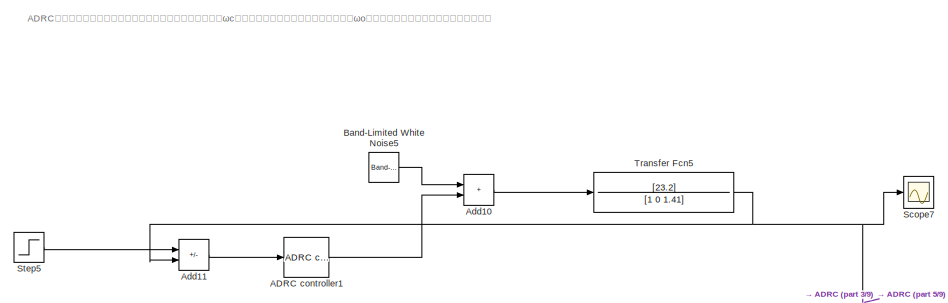
[diagram: root canvas - part 1/9, top left region]
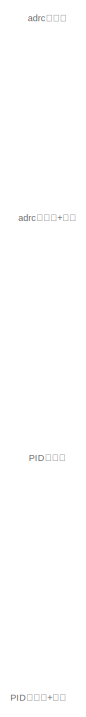
[diagram: root canvas - part 2/9, top left region]
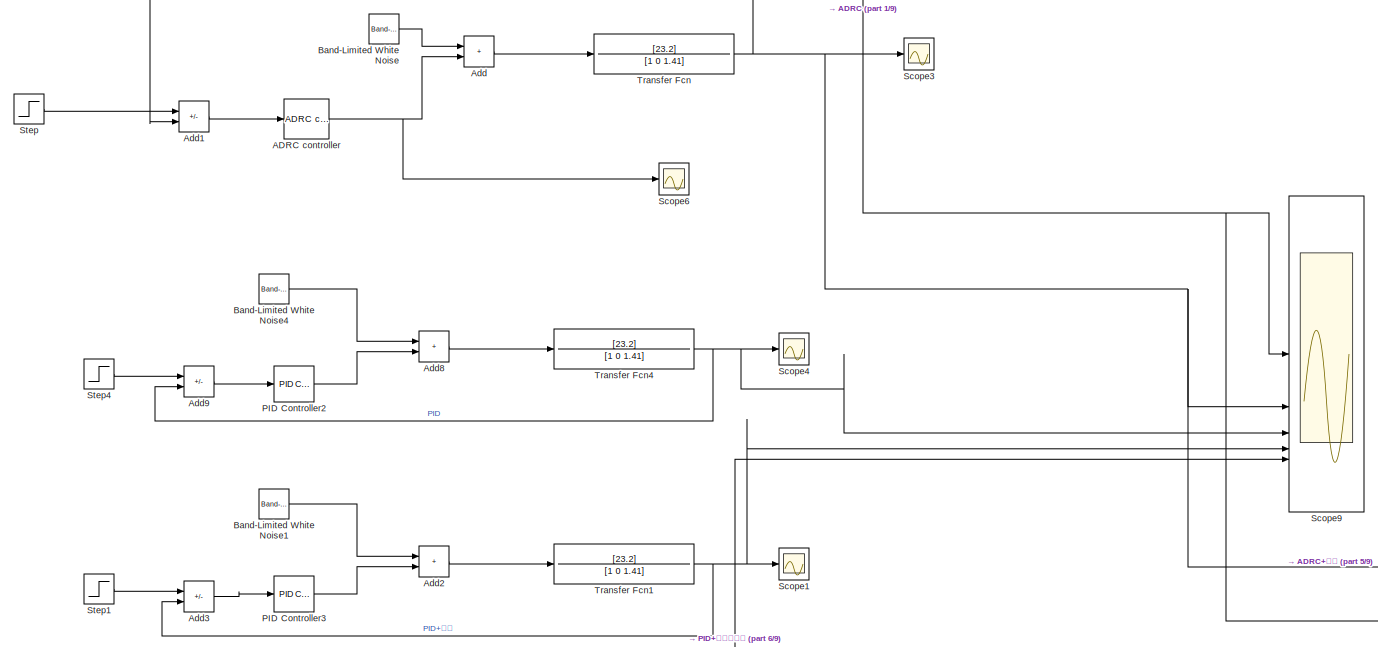
[diagram: root canvas - part 3/9, middle left region]
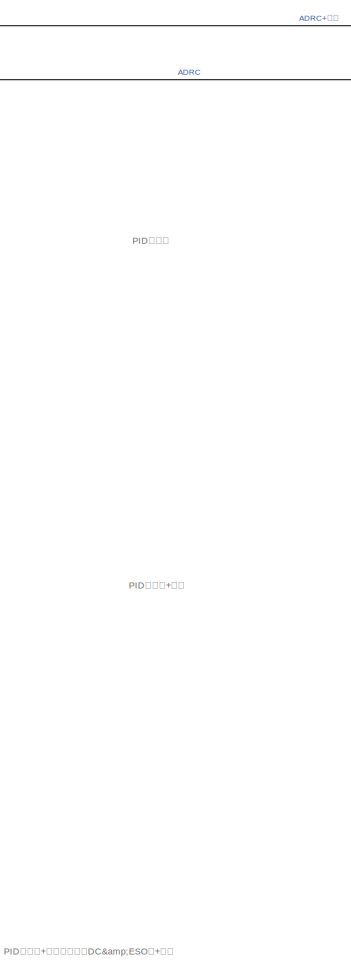
[diagram: root canvas - part 4/9, bottom center region]
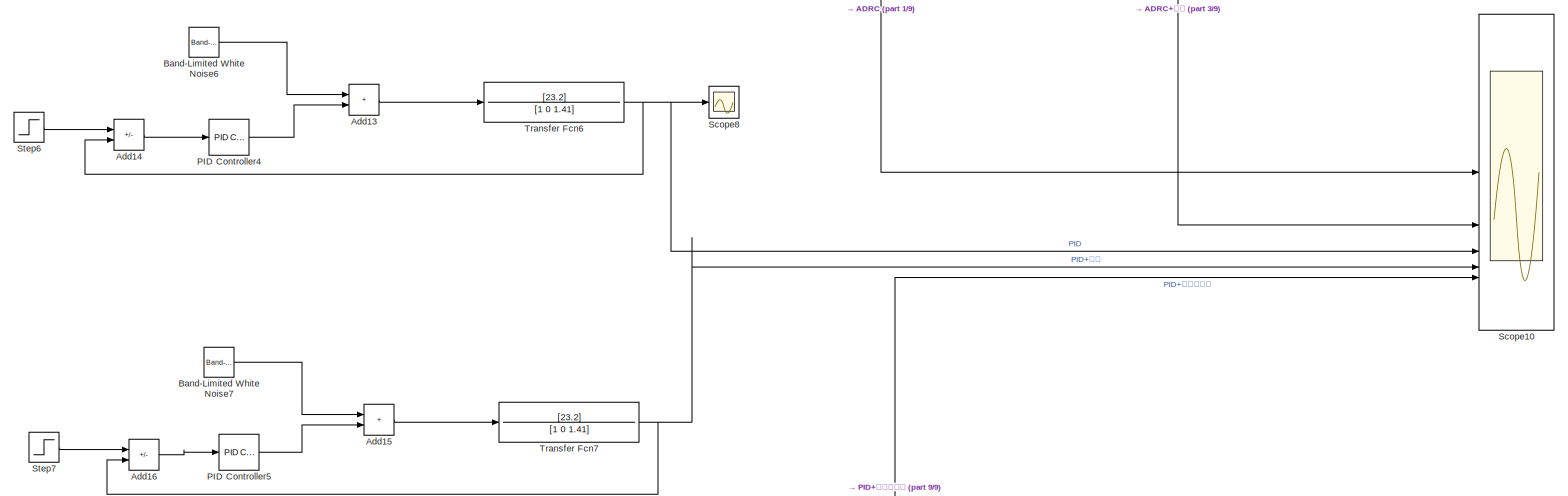
[diagram: root canvas - part 5/9, bottom right region]
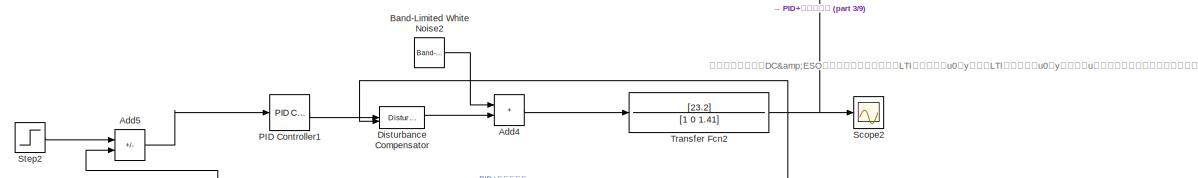
[diagram: root canvas - part 6/9, middle left region]
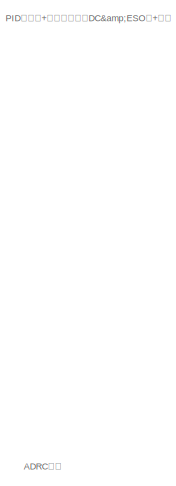
[diagram: root canvas - part 7/9, bottom left region]
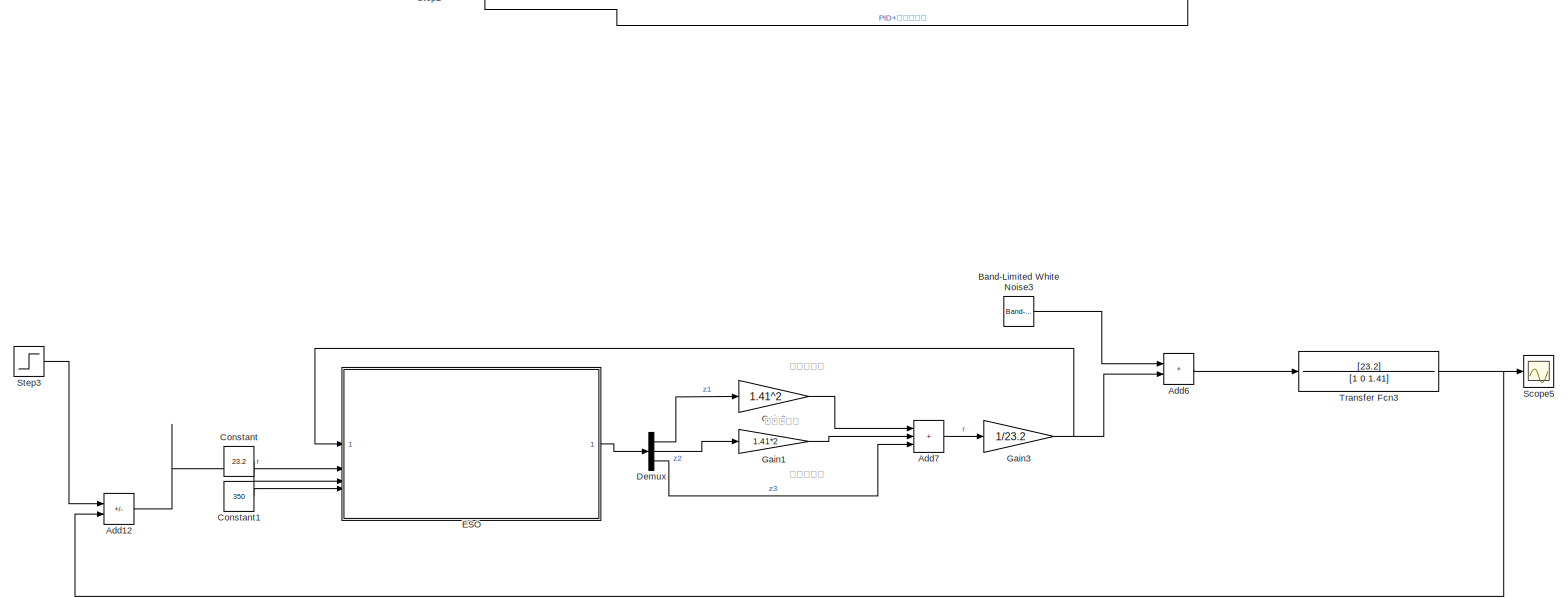
[diagram: root canvas - part 8/9, bottom left region]
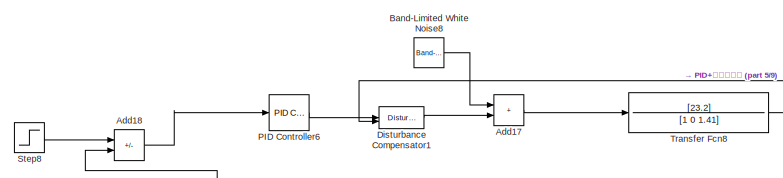
[diagram: root canvas - part 9/9, bottom right region]
MODEL slx_7e202ef343a3
KIND model
CONFIG AbsTol = auto
CONFIG EnableMultiTasking = off
CONFIG FixedStep = auto
CONFIG MaxStep = auto
CONFIG MinStep = auto
CONFIG RelTol = 1e-3
CONFIG SampleTimeConstraint = Unconstrained
CONFIG SolverName = VariableStepAuto
CONFIG StartTime = 0.0
CONFIG StopTime = 100
BLOCK [Reference] ADRC controller  REF=adrc_toolbox_library/ADRC controller
  SourceBlock = adrc_toolbox_library/ADRC controller
  SourceProductName = ADRC Toolbox
  SourceType = ADRC controller
BLOCK [Reference] ADRC controller1  REF=adrc_toolbox_library/ADRC controller
  SourceBlock = adrc_toolbox_library/ADRC controller
  SourceProductName = ADRC Toolbox
  SourceType = ADRC controller
BLOCK [Sum] Add
  IconShape = rectangular
BLOCK [Sum] Add1
  IconShape = rectangular
  Inputs = +-
BLOCK [Sum] Add10
  IconShape = rectangular
BLOCK [Sum] Add11
  IconShape = rectangular
  Inputs = +-
BLOCK [Sum] Add12
  IconShape = rectangular
  Inputs = +-
BLOCK [Sum] Add13
  IconShape = rectangular
BLOCK [Sum] Add14
  IconShape = rectangular
  Inputs = +-
BLOCK [Sum] Add15
  IconShape = rectangular
BLOCK [Sum] Add16
  IconShape = rectangular
  Inputs = +-
BLOCK [Sum] Add17
  IconShape = rectangular
BLOCK [Sum] Add18
  IconShape = rectangular
  Inputs = +-
BLOCK [Sum] Add2
  IconShape = rectangular
BLOCK [Sum] Add3
  IconShape = rectangular
  Inputs = +-
BLOCK [Sum] Add4
  IconShape = rectangular
BLOCK [Sum] Add5
  IconShape = rectangular
  Inputs = +-
BLOCK [Sum] Add6
  IconShape = rectangular
BLOCK [Sum] Add7
  IconShape = rectangular
  Inputs = +++
BLOCK [Sum] Add8
  IconShape = rectangular
BLOCK [Sum] Add9
  IconShape = rectangular
  Inputs = +-
BLOCK [Reference] Band-Limited White Noise  REF=simulink/Sources/Band-Limited
White Noise
  SourceBlock = simulink/Sources/Band-Limited\nWhite Noise
  SourceType = Band-Limited White Noise.
BLOCK [Reference] Band-Limited White Noise1  REF=simulink/Sources/Band-Limited
White Noise
  SourceBlock = simulink/Sources/Band-Limited\nWhite Noise
  SourceType = Band-Limited White Noise.
BLOCK [Reference] Band-Limited White Noise2  REF=simulink/Sources/Band-Limited
White Noise
  SourceBlock = simulink/Sources/Band-Limited\nWhite Noise
  SourceType = Band-Limited White Noise.
BLOCK [Reference] Band-Limited White Noise3  REF=simulink/Sources/Band-Limited
White Noise
  SourceBlock = simulink/Sources/Band-Limited\nWhite Noise
  SourceType = Band-Limited White Noise.
BLOCK [Reference] Band-Limited White Noise4  REF=simulink/Sources/Band-Limited
White Noise
  SourceBlock = simulink/Sources/Band-Limited\nWhite Noise
  SourceType = Band-Limited White Noise.
BLOCK [Reference] Band-Limited White Noise5  REF=simulink/Sources/Band-Limited
White Noise
  SourceBlock = simulink/Sources/Band-Limited\nWhite Noise
  SourceType = Band-Limited White Noise.
BLOCK [Reference] Band-Limited White Noise6  REF=simulink/Sources/Band-Limited
White Noise
  SourceBlock = simulink/Sources/Band-Limited\nWhite Noise
  SourceType = Band-Limited White Noise.
BLOCK [Reference] Band-Limited White Noise7  REF=simulink/Sources/Band-Limited
White Noise
  SourceBlock = simulink/Sources/Band-Limited\nWhite Noise
  SourceType = Band-Limited White Noise.
BLOCK [Reference] Band-Limited White Noise8  REF=simulink/Sources/Band-Limited
White Noise
  SourceBlock = simulink/Sources/Band-Limited\nWhite Noise
  SourceType = Band-Limited White Noise.
BLOCK [Constant] Constant
  Value = 23.2
BLOCK [Constant] Constant1
  Value = 350
BLOCK [Demux] Demux
  Outputs = 3
BLOCK [Reference] Disturbance Compensator  REF=slctrl_disturbance/Disturbance Compensator
  LibrarySourceBlock = slctrlblks/Disturbance Observer/Disturbance Compensator
  SourceBlock = slctrl_disturbance/Disturbance Compensator
  SourceType = Disturbance Compensator
BLOCK [Reference] Disturbance Compensator1  REF=slctrl_disturbance/Disturbance Compensator
  LibrarySourceBlock = slctrlblks/Disturbance Observer/Disturbance Compensator
  SourceBlock = slctrl_disturbance/Disturbance Compensator
  SourceType = Disturbance Compensator
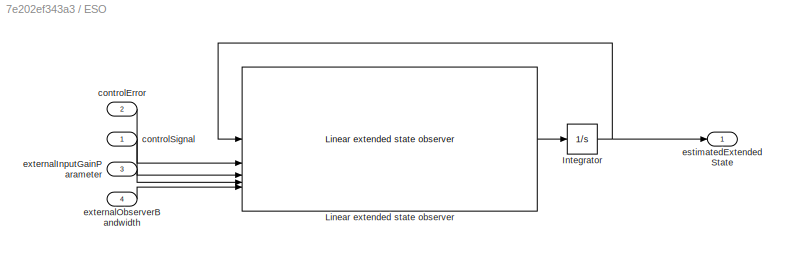
BLOCK [SubSystem] ESO
BLOCK [Integrator] ESO/Integrator
  InitialCondition = zeros(3,1)
BLOCK [Reference] ESO/Linear extended state observer  REF=adrc_toolbox_library/ADRC controller/Linear extended state observer/Linear extended state observer
  SourceBlock = adrc_toolbox_library/ADRC controller/Linear extended state observer/Linear extended state observer
  SourceProductName = ADRC Toolbox
BLOCK [Inport] ESO/controlError
  Port = 2
BLOCK [Inport] ESO/controlSignal
BLOCK [Outport] ESO/estimatedExtendedState
  NameLocation = right
BLOCK [Inport] ESO/externalInputGainParameter
  Port = 3
BLOCK [Inport] ESO/externalObserverBandwidth
  Port = 4
BLOCK [Gain] Gain1
  Gain = 1.41*2
BLOCK [Gain] Gain2
  Gain = 1.41^2
BLOCK [Gain] Gain3
  Gain = 1/23.2
BLOCK [Reference] PID Controller1  REF=slpidlib/PID Controller
  LibrarySourceBlock = simulink/Continuous/PID Controller
  SourceBlock = slpidlib/PID Controller
  SourceType = PID 1dof
BLOCK [Reference] PID Controller2  REF=slpidlib/PID Controller
  LibrarySourceBlock = simulink/Continuous/PID Controller
  SourceBlock = slpidlib/PID Controller
  SourceType = PID 1dof
BLOCK [Reference] PID Controller3  REF=slpidlib/PID Controller
  LibrarySourceBlock = simulink/Continuous/PID Controller
  SourceBlock = slpidlib/PID Controller
  SourceType = PID 1dof
BLOCK [Reference] PID Controller4  REF=slpidlib/PID Controller
  LibrarySourceBlock = simulink/Continuous/PID Controller
  SourceBlock = slpidlib/PID Controller
  SourceType = PID 1dof
BLOCK [Reference] PID Controller5  REF=slpidlib/PID Controller
  LibrarySourceBlock = simulink/Continuous/PID Controller
  SourceBlock = slpidlib/PID Controller
  SourceType = PID 1dof
BLOCK [Reference] PID Controller6  REF=slpidlib/PID Controller
  LibrarySourceBlock = simulink/Continuous/PID Controller
  SourceBlock = slpidlib/PID Controller
  SourceType = PID 1dof
BLOCK [Scope] Scope1
  ActiveDisplayYMaximum = 2
  ActiveDisplayYMinimum = -1
  DataLoggingVariableName = ScopeData1
  Floating = off
  GraphicalSettings = {"Style":{"BackgroundColor":[0.12941176470588237,0.12941176470588237,0.12941176470588237],"AxesColor":[0.07058823529411765,0.07058823529411765,0.07058823529411765],"LabelsColor":[0.8509803921568627,0.8509803921568627,0.8509803921568627],"PreserveColors":false,"Visible":[true],"LineStyle":["-"],"LineWidth":[1.5],"BarWidth":[0.9],"LineColor":["auto"],"LineFaceAlpha":[1],"LineEdgeAlpha":[1],"Marker":...<+1930ch>
  MultipleDisplayCache = [{"MaxYLimMag":3.7622519846701663,"MaxYLimReal":2,"MinYLimMag":0,"MinYLimReal":-1,"PlotAsMagnitudePhase":false,"ShowGrid":true,"ShowLegend":false,"Title":"%<SignalLabel>","YLabel":""}]
  NumInputPorts = 1
  ScopeFrameLocation = window
  WasSavedAsWebScope = on
  WindowPosition = [930.000000,333.000000,560.000000,420.000000,]
BLOCK [Scope] Scope10
  ActiveDisplayYMaximum = 1.4
  ActiveDisplayYMinimum = 0
  DataLoggingVariableName = ScopeData9
  Floating = off
  GraphicalSettings = {"Style":{"BackgroundColor":[0.12941176470588237,0.12941176470588237,0.12941176470588237],"AxesColor":[0.07058823529411765,0.07058823529411765,0.07058823529411765],"LabelsColor":[0.8509803921568627,0.8509803921568627,0.8509803921568627],"PreserveColors":false,"Visible":[true,true,true,true,true],"LineStyle":["-","-","-","-","-"],"LineWidth":[1.5,1.5,1.5,1.5,1.5],"BarWidth":[0.9,0.9,0.9,0.9,0.9],"L...<+2369ch>
  MultipleDisplayCache = [{"MaxYLimMag":3.7622519846701663,"MaxYLimReal":1.4,"MinYLimMag":0,"MinYLimReal":0,"PlotAsMagnitudePhase":false,"ShowGrid":true,"ShowLegend":true,"Title":"PID和ADRC对比","YLabel":""}]
  NumInputPorts = 5
  ScopeFrameLocation = window
  ShowLegend = on
  Title = PID和ADRC对比
  WasSavedAsWebScope = on
  WindowPosition = [518.000000,207.000000,1160.000000,711.000000,]
BLOCK [Scope] Scope2
  ActiveDisplayYMaximum = 0.99900672878559849
  ActiveDisplayYMinimum = 0.9096813253515863
  DataLoggingVariableName = ScopeData2
  Floating = off
  GraphicalSettings = {"AxesScalingProperties":{"AlignXAxis":"Center","AlignYAxis":"Center","AutoScaleXAxisLimits":false,"AxesScaling":"Manual","AxesScalingNumUpdates":10,"ExpandOnly":true,"ScaleAxesLimitsAtStop":false,"XAxisDataRange":100,"YAxisDataRange":80},"DisplayProperties":{"ColorOrder":["auto","auto","auto","auto","auto","auto","auto","auto","auto","auto","auto","auto","auto","auto","auto","auto","auto","auto",...<+2007ch>
  MultipleDisplayCache = [{"MaxYLimMag":3.7622519846701663,"MaxYLimReal":0.99900672878559849,"MinYLimMag":0,"MinYLimReal":0.9096813253515863,"PlotAsMagnitudePhase":false,"ShowGrid":true,"ShowLegend":false,"Title":"%<SignalLabel>","YLabel":""}]
  NumInputPorts = 1
  ScopeFrameLocation = window
  WasSavedAsWebScope = on
  WindowPosition = [745.000000,186.000000,560.000000,420.000000,]
BLOCK [Scope] Scope3
  ActiveDisplayYMaximum = 1.05
  ActiveDisplayYMinimum = 0
  Floating = off
  GraphicalSettings = {"AxesScalingProperties":{"AlignXAxis":"Center","AlignYAxis":"Center","AutoScaleXAxisLimits":false,"AxesScaling":"Manual","AxesScalingNumUpdates":10,"ExpandOnly":true,"ScaleAxesLimitsAtStop":false,"XAxisDataRange":100,"YAxisDataRange":80},"DisplayProperties":{"ColorOrder":["auto","auto","auto","auto","auto","auto","auto","auto","auto","auto","auto","auto","auto","auto","auto","auto","auto","auto",...<+2018ch>
  MultipleDisplayCache = [{"MaxYLimMag":3.7622519846701663,"MaxYLimReal":1.05,"MinYLimMag":0,"MinYLimReal":0,"PlotAsMagnitudePhase":false,"ShowGrid":true,"ShowLegend":false,"Title":"%<SignalLabel>","YLabel":""}]
  NumInputPorts = 1
  ScopeFrameLocation = window
  WasSavedAsWebScope = on
  WindowPosition = [721.000000,182.000000,559.000000,418.000000,]
BLOCK [Scope] Scope4
  ActiveDisplayYMaximum = 1.0978606838825373
  ActiveDisplayYMinimum = 0.81732514764202113
  DataLoggingVariableName = ScopeData4
  Floating = off
  GraphicalSettings = {"AxesScalingProperties":{"AlignXAxis":"Center","AlignYAxis":"Center","AutoScaleXAxisLimits":false,"AxesScaling":"Manual","AxesScalingNumUpdates":10,"ExpandOnly":true,"ScaleAxesLimitsAtStop":false,"XAxisDataRange":100,"YAxisDataRange":80},"DisplayProperties":{"ColorOrder":["auto","auto","auto","auto","auto","auto","auto","auto","auto","auto","auto","auto","auto","auto","auto","auto","auto","auto",...<+2003ch>
  MultipleDisplayCache = [{"MaxYLimMag":66.041381836301724,"MaxYLimReal":1.0978606838825373,"MinYLimMag":0,"MinYLimReal":0.81732514764202113,"PlotAsMagnitudePhase":false,"ShowGrid":true,"ShowLegend":false,"Title":"%<SignalLabel>","YLabel":""}]
  NumInputPorts = 1
  ScopeFrameLocation = window
  WasSavedAsWebScope = on
  WindowPosition = [763.000000,367.000000,560.000000,420.000000,]
BLOCK [Scope] Scope5
  ActiveDisplayYMaximum = 2.7529812650233358
  ActiveDisplayYMinimum = -1.4042011831290171
  DataLoggingVariableName = ScopeData3
  Floating = off
  GraphicalSettings = {"Style":{"BackgroundColor":[0.12941176470588237,0.12941176470588237,0.12941176470588237],"AxesColor":[0.07058823529411765,0.07058823529411765,0.07058823529411765],"LabelsColor":[0.8509803921568627,0.8509803921568627,0.8509803921568627],"PreserveColors":false,"Visible":[true],"LineStyle":["-"],"LineWidth":[1.5],"BarWidth":[0.9],"LineColor":["auto"],"LineFaceAlpha":[1],"LineEdgeAlpha":[1],"Marker":...<+1994ch>
  MultipleDisplayCache = [{"MaxYLimMag":3.7622519846701663,"MaxYLimReal":2.7529812650233358,"MinYLimMag":0,"MinYLimReal":-1.4042011831290171,"PlotAsMagnitudePhase":false,"ShowGrid":true,"ShowLegend":false,"Title":"%<SignalLabel>","YLabel":""}]
  NumInputPorts = 1
  ScopeFrameLocation = window
  WasSavedAsWebScope = on
  WindowPosition = [930.000000,333.000000,560.000000,420.000000,]
BLOCK [Scope] Scope6
  ActiveDisplayYMaximum = 0.33997949558563656
  ActiveDisplayYMinimum = -0.16122486126909497
  DataLoggingVariableName = ScopeData5
  Floating = off
  GraphicalSettings = {"Style":{"BackgroundColor":[0.12941176470588237,0.12941176470588237,0.12941176470588237],"AxesColor":[0.07058823529411765,0.07058823529411765,0.07058823529411765],"LabelsColor":[0.8509803921568627,0.8509803921568627,0.8509803921568627],"PreserveColors":false,"Visible":[true],"LineStyle":["-"],"LineWidth":[1.5],"BarWidth":[0.9],"LineColor":["auto"],"LineFaceAlpha":[1],"LineEdgeAlpha":[1],"Marker":...<+2004ch>
  MultipleDisplayCache = [{"MaxYLimMag":3.7622519846701663,"MaxYLimReal":0.33997949558563656,"MinYLimMag":0,"MinYLimReal":-0.16122486126909497,"PlotAsMagnitudePhase":false,"ShowGrid":true,"ShowLegend":false,"Title":"%<SignalLabel>","YLabel":""}]
  NumInputPorts = 1
  ScopeFrameLocation = window
  WasSavedAsWebScope = on
  WindowPosition = [228.000000,369.000000,560.000000,420.000000,]
BLOCK [Scope] Scope7
  ActiveDisplayYMaximum = 1.05
  ActiveDisplayYMinimum = 0
  DataLoggingVariableName = ScopeData6
  Floating = off
  GraphicalSettings = {"AxesScalingProperties":{"AlignXAxis":"Center","AlignYAxis":"Center","AutoScaleXAxisLimits":false,"AxesScaling":"Manual","AxesScalingNumUpdates":10,"ExpandOnly":true,"ScaleAxesLimitsAtStop":false,"XAxisDataRange":100,"YAxisDataRange":80},"DisplayProperties":{"ColorOrder":["auto","auto","auto","auto","auto","auto","auto","auto","auto","auto","auto","auto","auto","auto","auto","auto","auto","auto",...<+2016ch>
  MultipleDisplayCache = [{"MaxYLimMag":3.7622519846701663,"MaxYLimReal":1.05,"MinYLimMag":0,"MinYLimReal":0,"PlotAsMagnitudePhase":false,"ShowGrid":true,"ShowLegend":false,"Title":"%<SignalLabel>","YLabel":""}]
  NumInputPorts = 1
  ScopeFrameLocation = window
  WasSavedAsWebScope = on
  WindowPosition = [721.000000,182.000000,559.000000,418.000000,]
BLOCK [Scope] Scope8
  ActiveDisplayYMaximum = 1.0978606838825373
  ActiveDisplayYMinimum = 0.81732514764202113
  DataLoggingVariableName = ScopeData7
  Floating = off
  GraphicalSettings = {"AxesScalingProperties":{"AlignXAxis":"Center","AlignYAxis":"Center","AutoScaleXAxisLimits":false,"AxesScaling":"Manual","AxesScalingNumUpdates":10,"ExpandOnly":true,"ScaleAxesLimitsAtStop":false,"XAxisDataRange":100,"YAxisDataRange":80},"DisplayProperties":{"ColorOrder":["auto","auto","auto","auto","auto","auto","auto","auto","auto","auto","auto","auto","auto","auto","auto","auto","auto","auto",...<+2003ch>
  MultipleDisplayCache = [{"MaxYLimMag":66.041381836301724,"MaxYLimReal":1.0978606838825373,"MinYLimMag":0,"MinYLimReal":0.81732514764202113,"PlotAsMagnitudePhase":false,"ShowGrid":true,"ShowLegend":false,"Title":"%<SignalLabel>","YLabel":""}]
  NumInputPorts = 1
  ScopeFrameLocation = window
  WasSavedAsWebScope = on
  WindowPosition = [763.000000,367.000000,560.000000,420.000000,]
BLOCK [Scope] Scope9
  ActiveDisplayYMaximum = 1.05
  ActiveDisplayYMinimum = 0
  DataLoggingVariableName = ScopeData8
  Floating = off
  GraphicalSettings = {"Style":{"BackgroundColor":[0.12941176470588237,0.12941176470588237,0.12941176470588237],"AxesColor":[0.07058823529411765,0.07058823529411765,0.07058823529411765],"LabelsColor":[0.8509803921568627,0.8509803921568627,0.8509803921568627],"PreserveColors":false,"Visible":[true,true,true,true,true],"LineStyle":["-","-","-","-","-"],"LineWidth":[1.5,1.5,1.5,1.5,1.5],"BarWidth":[0.9,0.9,0.9,0.9,0.9],"L...<+2389ch>
  MultipleDisplayCache = [{"MaxYLimMag":3.7622519846701663,"MaxYLimReal":1.05,"MinYLimMag":0,"MinYLimReal":0,"PlotAsMagnitudePhase":false,"ShowGrid":true,"ShowLegend":true,"Title":"PID和ADRC对比（同样的PD参数）","YLabel":""}]
  NumInputPorts = 5
  ScopeFrameLocation = window
  ShowLegend = on
  Title = PID和ADRC对比（同样的PD参数）
  WasSavedAsWebScope = on
  WindowPosition = [518.000000,207.000000,1160.000000,711.000000,]
BLOCK [Step] Step
  SampleTime = 0
  Time = 2
BLOCK [Step] Step1
  SampleTime = 0
  Time = 2
BLOCK [Step] Step2
  SampleTime = 0
  Time = 2
BLOCK [Step] Step3
  SampleTime = 0
  Time = 2
BLOCK [Step] Step4
  SampleTime = 0
  Time = 2
BLOCK [Step] Step5
  SampleTime = 0
  Time = 2
BLOCK [Step] Step6
  SampleTime = 0
  Time = 2
BLOCK [Step] Step7
  SampleTime = 0
  Time = 2
BLOCK [Step] Step8
  SampleTime = 0
  Time = 2
BLOCK [TransferFcn] Transfer Fcn
  Denominator = [1 0 1.41]
  Numerator = [23.2]
BLOCK [TransferFcn] Transfer Fcn1
  Denominator = [1 0 1.41]
  Numerator = [23.2]
BLOCK [TransferFcn] Transfer Fcn2
  Denominator = [1 0 1.41]
  Numerator = [23.2]
BLOCK [TransferFcn] Transfer Fcn3
  Denominator = [1 0 1.41]
  Numerator = [23.2]
BLOCK [TransferFcn] Transfer Fcn4
  Denominator = [1 0 1.41]
  Numerator = [23.2]
BLOCK [TransferFcn] Transfer Fcn5
  Denominator = [1 0 1.41]
  Numerator = [23.2]
BLOCK [TransferFcn] Transfer Fcn6
  Denominator = [1 0 1.41]
  Numerator = [23.2]
BLOCK [TransferFcn] Transfer Fcn7
  Denominator = [1 0 1.41]
  Numerator = [23.2]
BLOCK [TransferFcn] Transfer Fcn8
  Denominator = [1 0 1.41]
  Numerator = [23.2]
ANNOTATION (root): ADRC拆解
ANNOTATION (root): PID控制器+噪声
ANNOTATION (root): PID控制器+扰动补偿器（DC&ESO）+噪声
ANNOTATION (root): PID控制器
ANNOTATION (root): adrc控制器+噪声
ANNOTATION (root): adrc控制器
ANNOTATION (root): 注：扰动补偿器（DC&ESO）仅仅是基于系统本身的LTI模型，根据u0、y和系统LTI模型，通过u0、y，计算出u的修正量，消除系统外部扰动。它不消除系统内扰，因此效果和ADRC不同，同样采用PD控制时，采用DC&ESO仍然有稳态偏差。
ANNOTATION (root): ADRC调参时，增益项就是传递函数系统的增益，控制器带宽ωc越大，控制器动作越频繁，观测器带宽ωo越大，大于扰动带宽，基本可消除扰动。
ANNOTATION (root): 微分控制项
ANNOTATION (root): 扰动观测值
ANNOTATION (root): 比例控制项
LINE ADRC controller1:1 -> Add10:2
NET ADRC controller:1 -> Add:2, Scope6:1
LINE Add10:1 -> Transfer Fcn5:1
LINE Add11:1 -> ADRC controller1:1
LINE Add12:1 -> ESO:2
LINE Add13:1 -> Transfer Fcn6:1
LINE Add14:1 -> PID Controller4:1
LINE Add15:1 -> Transfer Fcn7:1
LINE Add16:1 -> PID Controller5:1
LINE Add17:1 -> Transfer Fcn8:1
LINE Add18:1 -> PID Controller6:1
LINE Add1:1 -> ADRC controller:1
LINE Add2:1 -> Transfer Fcn1:1
LINE Add3:1 -> PID Controller3:1
LINE Add4:1 -> Transfer Fcn2:1
LINE Add5:1 -> PID Controller1:1
LINE Add6:1 -> Transfer Fcn3:1
LINE Add7:1 -> Gain3:1
LINE Add8:1 -> Transfer Fcn4:1
LINE Add9:1 -> PID Controller2:1
LINE Add:1 -> Transfer Fcn:1
LINE Band-Limited White Noise1:1 -> Add2:1
LINE Band-Limited White Noise2:1 -> Add4:1
LINE Band-Limited White Noise3:1 -> Add6:1
LINE Band-Limited White Noise4:1 -> Add8:1
LINE Band-Limited White Noise5:1 -> Add10:1
LINE Band-Limited White Noise6:1 -> Add13:1
LINE Band-Limited White Noise7:1 -> Add15:1
LINE Band-Limited White Noise8:1 -> Add17:1
LINE Band-Limited White Noise:1 -> Add:1
LINE Constant1:1 -> ESO:4
LINE Constant:1 -> ESO:3
LINE Demux:1 -> Gain2:1
LINE Demux:2 -> Gain1:1
LINE Demux:3 -> Add7:3
LINE Disturbance Compensator1:1 -> Add17:2
LINE Disturbance Compensator:1 -> Add4:2
NET ESO/Integrator:1 -> ESO/Linear extended state observer:1, ESO/estimatedExtendedState:1
LINE ESO/Linear extended state observer:1 -> ESO/Integrator:1
LINE ESO/controlError:1 -> ESO/Linear extended state observer:2
LINE ESO/controlSignal:1 -> ESO/Linear extended state observer:3
LINE ESO/externalInputGainParameter:1 -> ESO/Linear extended state observer:4
LINE ESO/externalObserverBandwidth:1 -> ESO/Linear extended state observer:5
LINE ESO:1 -> Demux:1
LINE Gain1:1 -> Add7:2
LINE Gain2:1 -> Add7:1
NET Gain3:1 -> Add6:2, ESO:1
LINE PID Controller1:1 -> Disturbance Compensator:1
LINE PID Controller2:1 -> Add8:2
LINE PID Controller3:1 -> Add2:2
LINE PID Controller4:1 -> Add13:2
LINE PID Controller5:1 -> Add15:2
LINE PID Controller6:1 -> Disturbance Compensator1:1
LINE Step1:1 -> Add3:1
LINE Step2:1 -> Add5:1
LINE Step3:1 -> Add12:1
LINE Step4:1 -> Add9:1
LINE Step5:1 -> Add11:1
LINE Step6:1 -> Add14:1
LINE Step7:1 -> Add16:1
LINE Step8:1 -> Add18:1
LINE Step:1 -> Add1:1
NET Transfer Fcn1:1 -> Add3:2, Scope1:1, Scope9:4
NET Transfer Fcn2:1 -> Add5:2, Disturbance Compensator:2, Scope2:1, Scope9:5
NET Transfer Fcn3:1 -> Add12:2, Scope5:1
NET Transfer Fcn4:1 -> Add9:2, Scope4:1, Scope9:3
NET Transfer Fcn5:1 -> Add11:2, Scope10:1, Scope7:1, Scope9:1
NET Transfer Fcn6:1 -> Add14:2, Scope10:3, Scope8:1
NET Transfer Fcn7:1 -> Add16:2, Scope10:4
NET Transfer Fcn8:1 -> Add18:2, Disturbance Compensator1:2, Scope10:5
NET Transfer Fcn:1 -> Add1:2, Scope10:2, Scope3:1, Scope9:2
note: NET lines group one-source signal fan-out (src -> all destinations, sorted); 1:1 wires keep LINE
